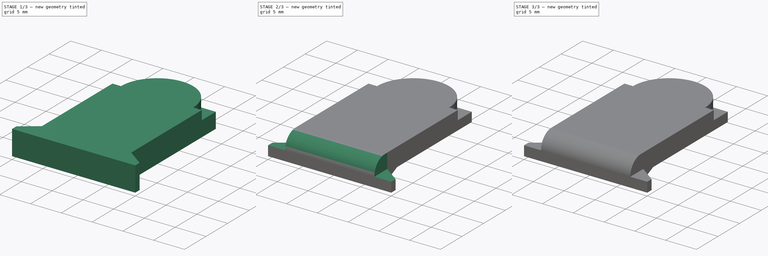
[diagram: build sequence overview — one tinted view per stage of 3, left to right]
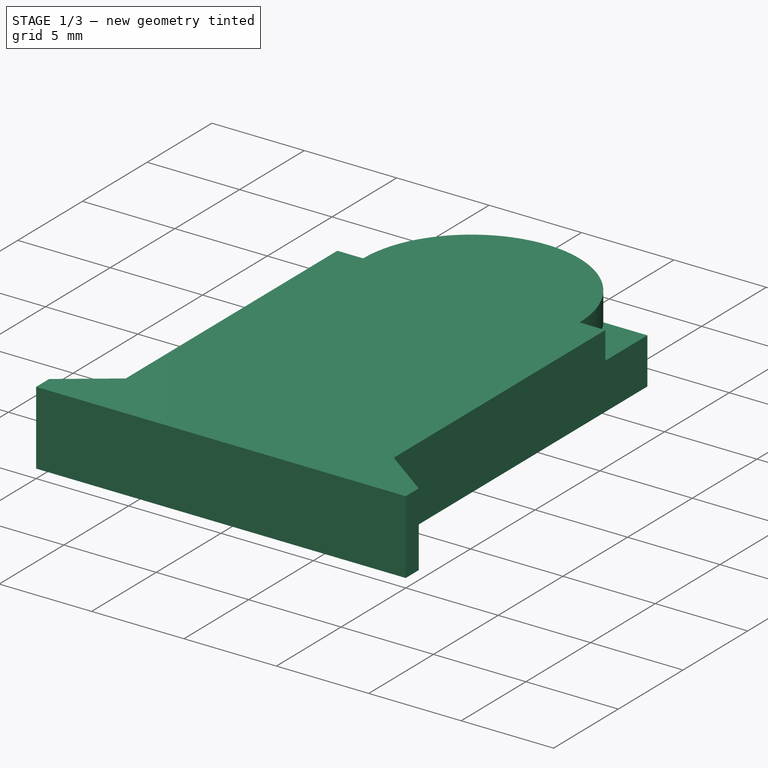
[diagram: stage 1 of 3 — iso view after this stage's code; geometry added in this stage tinted green]
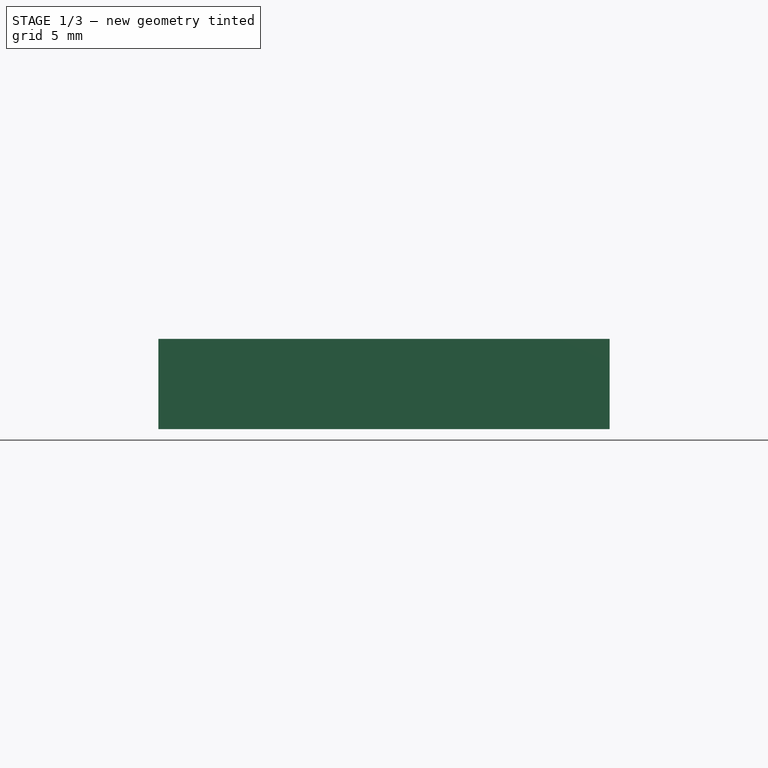
[diagram: stage 1 of 3 — front view after this stage's code; geometry added in this stage tinted green]
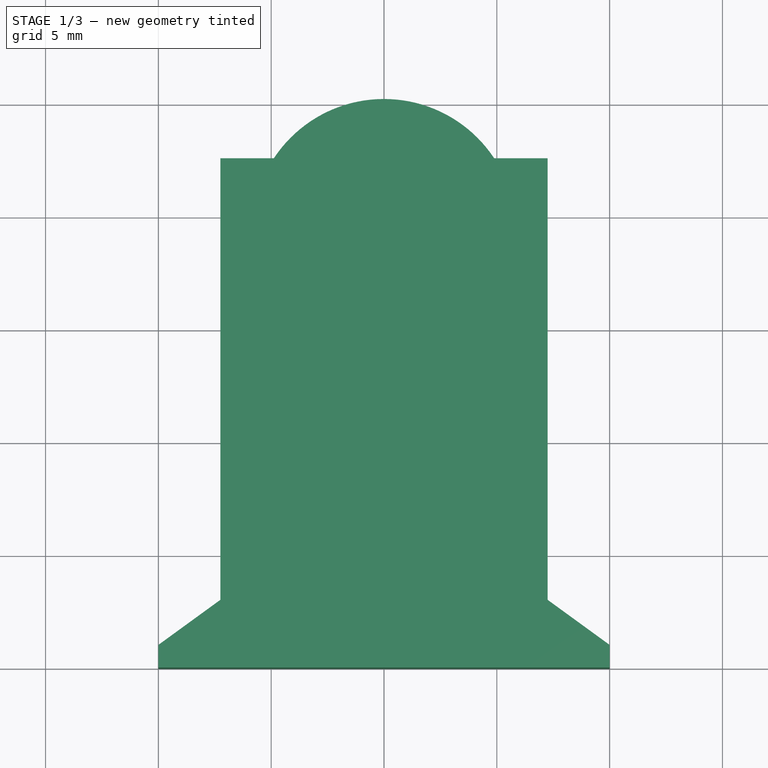
[diagram: stage 1 of 3 — top view after this stage's code; geometry added in this stage tinted green]
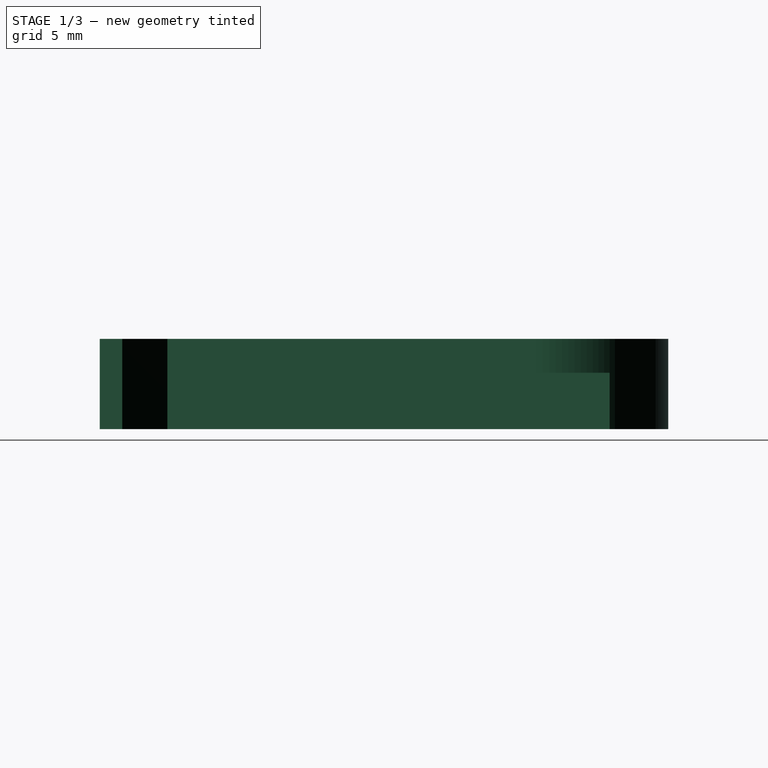
[diagram: stage 1 of 3 — right view after this stage's code; geometry added in this stage tinted green]
FCSTD DOCUMENT  (FreeCAD 0.21R33771 (Git))
Label: Chinon Bellami - battery cover
License: All rights reserved
LicenseURL: http://en.wikipedia.org/wiki/All_rights_reserved
objects: Sketcher::SketchObject×7, PartDesign::Pocket×6, PartDesign::Pad×1, PartDesign::Body×1
note: 22 computed .brp shape members not serialized (recipe doc carries the construction recipe); baked Part::Feature solids carry a one-line shape summary decoded from their .brp

FEATURE [Sketcher::SketchObject] Sketch
  FullyConstrained = true
  MapMode = 5
  Support = -> [XY_Plane]
  sketch-geometry (14):
    g0: LineSegment StartX=-10 StartY=0 StartZ=0 EndX=10 EndY=0 EndZ=0
    g1: LineSegment StartX=10 StartY=0 StartZ=0 EndX=10 EndY=1 EndZ=0
    g2: LineSegment StartX=-10 StartY=0 StartZ=0 EndX=-10 EndY=1 EndZ=0
    g3: LineSegment StartX=-10 StartY=1 StartZ=0 EndX=-7.25 EndY=3 EndZ=0
    g4: LineSegment StartX=10 StartY=1 StartZ=0 EndX=7.25 EndY=3 EndZ=0
    g5: LineSegment StartX=7.25 StartY=3 StartZ=0 EndX=7.25 EndY=22.6 EndZ=0
    g6: LineSegment StartX=-7.25 StartY=3 StartZ=0 EndX=-7.25 EndY=22.6 EndZ=0
    g7: ArcOfCircle CenterX=4e-16 CenterY=19.35 CenterZ=0 NormalX=0 NormalY=0 NormalZ=1 AngleXU=0 Radius=5.85 StartAngle=2e-16 EndAngle=3.14159
    g8: LineSegment StartX=7.25 StartY=19.35 StartZ=0 EndX=5.85 EndY=19.35 EndZ=0
    g9: LineSegment StartX=-7.25 StartY=19.35 StartZ=0 EndX=-5.85 EndY=19.35 EndZ=0
    g10: LineSegment StartX=7.25 StartY=22.6 StartZ=0 EndX=4.86415 EndY=22.6 EndZ=0
    g11: LineSegment StartX=-7.25 StartY=22.6 StartZ=0 EndX=-4.86415 EndY=22.6 EndZ=0
    g12: ArcOfCircle CenterX=4e-16 CenterY=19.35 CenterZ=0 NormalX=0 NormalY=0 NormalZ=1 AngleXU=0 Radius=5.85 StartAngle=0.589031 EndAngle=2.55256
    g13: GeomPoint X=0 Y=25.2 Z=0
  constraints (40):
    c: Horizontal(g0)
    c: Coincident(g1,g0)
    c: Vertical(g1)
    c: Coincident(g2,g0)
    c: Vertical(g2)
    c: Coincident(g4,g1)
    c: Coincident(g5,g4)
    c: Vertical(g5)
    c: Coincident(g6,g3)
    c: Vertical(g6)
    c: PointOnObject(g8,g5)
    c: Horizontal(g8)
    c: PointOnObject(g9,g6)
    c: Horizontal(g9)
    c: Coincident(g7,g9)
    c: Coincident(g7,g8)
    c: Angle(g7) = 3.14159
    c: Coincident(g10,g5)
    c: PointOnObject(g10,g7)
    c: Horizontal(g10)
    c: Coincident(g11,g6)
    c: Horizontal(g11)
    c: Coincident(g12,g11)
    c: Coincident(g12,g10)
    c: Coincident(g12,g7)
    c: Coincident(g3,g2)
    c: DistanceX(g0,g0) = 20
    c: DistanceX(g3,g4) = 14.5
    c: DistanceY(g0,g6) = 22.6
    c: PointOnObject(g13,g12)
    c: PointOnObject(g13,g-2)
    c: DistanceY(g0,g13) = 25.2
    c: Equal(g6,g5)
    c: Symmetric(g3,g4,g-2)
    c: Symmetric(g1,g2,g-2)
    c: DistanceY(g0,g1) = 1
    c: DistanceY(g0,g4) = 3
    c: DistanceX(g9,g7) = 1.4
    c: PointOnObject(g-1,g0)
    c: Symmetric(g7,g7,g-2)
FEATURE [PartDesign::Pad] Pad
  Direction = (1,1,1)
  Length = 4
  Length2 = 100
  Profile = -> Sketch
  Type = 0
FEATURE [Sketcher::SketchObject] Sketch001
  ExternalGeometry = -> [Pad]
  FullyConstrained = true
  MapMode = 5
  Placement = pos=(0,0,4) rot=(0,0,1;0rad)
  Support = -> [Pad]
  sketch-geometry (8):
    g0: ArcOfCircle CenterX=4e-16 CenterY=19.35 CenterZ=0 NormalX=0 NormalY=0 NormalZ=1 AngleXU=0 Radius=5.85 StartAngle=2.55256 EndAngle=3.14159
    g1: LineSegment StartX=-5.85 StartY=19.35 StartZ=0 EndX=-7.25 EndY=19.35 EndZ=0
    g2: LineSegment StartX=-4.86415 StartY=22.6 StartZ=0 EndX=-7.25 EndY=22.6 EndZ=0
    g3: LineSegment StartX=-7.25 StartY=19.35 StartZ=0 EndX=-7.25 EndY=22.6 EndZ=0
    g4: ArcOfCircle CenterX=4e-16 CenterY=19.35 CenterZ=0 NormalX=0 NormalY=0 NormalZ=1 AngleXU=0 Radius=5.85 StartAngle=2e-16 EndAngle=0.589031
    g5: LineSegment StartX=5.85 StartY=19.35 StartZ=0 EndX=7.25 EndY=19.35 EndZ=0
    g6: LineSegment StartX=7.25 StartY=19.35 StartZ=0 EndX=7.25 EndY=22.6 EndZ=0
    g7: LineSegment StartX=7.25 StartY=22.6 StartZ=0 EndX=4.86415 EndY=22.6 EndZ=0
  constraints (20):
    c: Coincident(g0,g-3)
    c: Coincident(g0,g-5)
    c: Coincident(g1,g0)
    c: PointOnObject(g1,g-6)
    c: Coincident(g2,g0)
    c: Coincident(g2,g-6)
    c: Horizontal(g0,g0)
    c: Coincident(g3,g1)
    c: Coincident(g3,g2)
    c: Coincident(g4,g0)
    c: Coincident(g4,g-4)
    c: Horizontal(g4,g0)
    c: Coincident(g5,g4)
    c: PointOnObject(g5,g-7)
    c: Horizontal(g5)
    c: Coincident(g6,g5)
    c: Coincident(g6,g-7)
    c: Coincident(g7,g6)
    c: Coincident(g7,g4)
    c: Horizontal(g1)
FEATURE [PartDesign::Pocket] Pocket
  BaseFeature = -> Pad
  Direction = (0,0,-1)
  Length = 1.5
  Length2 = 100
  Profile = -> Sketch001
  Type = 0
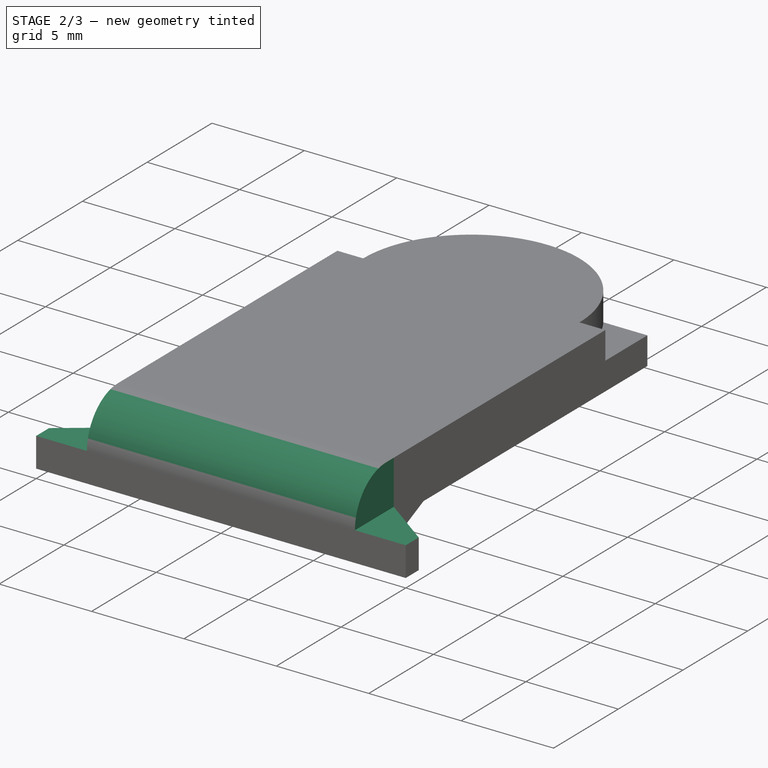
[diagram: stage 2 of 3 — iso view after this stage's code; geometry added in this stage tinted green]
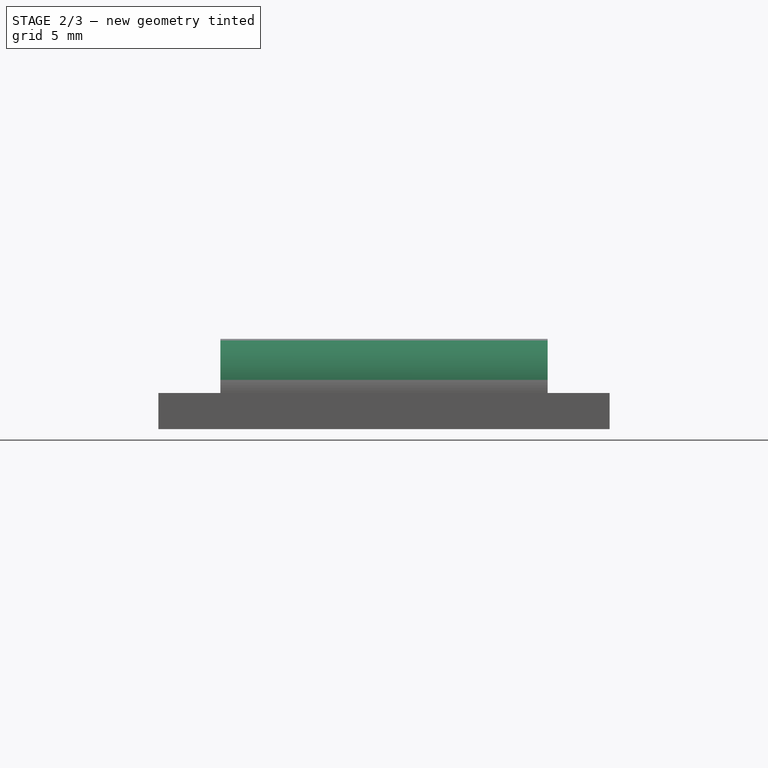
[diagram: stage 2 of 3 — front view after this stage's code; geometry added in this stage tinted green]
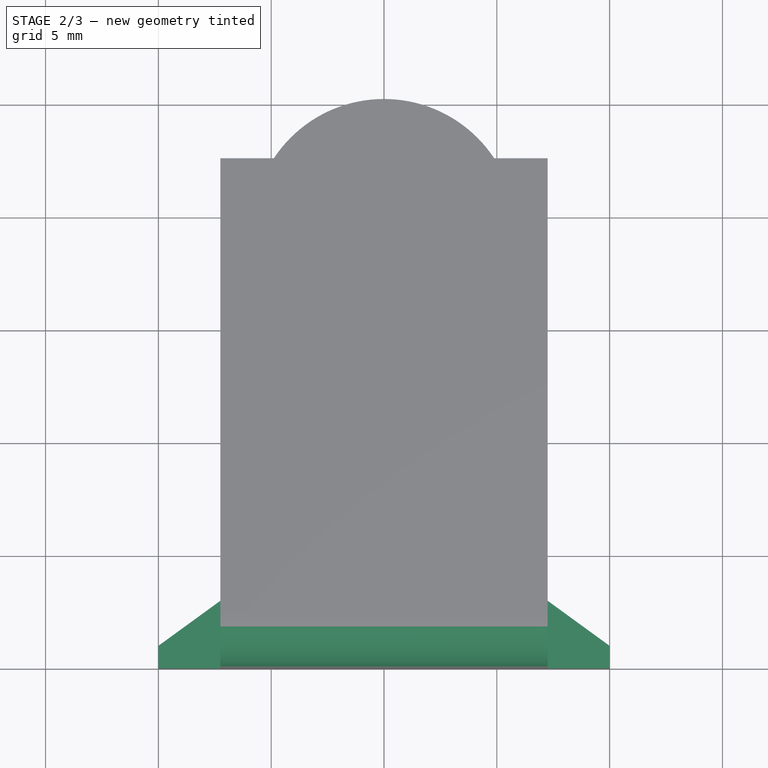
[diagram: stage 2 of 3 — top view after this stage's code; geometry added in this stage tinted green]
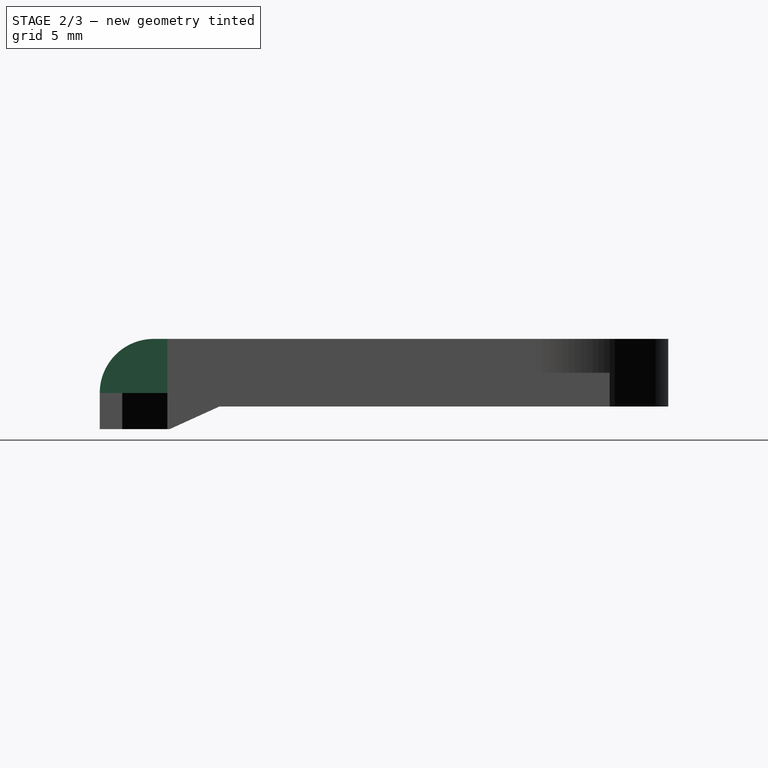
[diagram: stage 2 of 3 — right view after this stage's code; geometry added in this stage tinted green]
FEATURE [Sketcher::SketchObject] Sketch005  label="Sketch002"
  ExternalGeometry = -> [Pad]
  FullyConstrained = true
  MapMode = 5
  Placement = pos=(0,0,4) rot=(0,0,1;0rad)
  Support = -> [Pad]
  sketch-geometry (8):
    g0: LineSegment StartX=-7.25 StartY=3 StartZ=0 EndX=-10 EndY=1 EndZ=0
    g1: LineSegment StartX=-10 StartY=0 StartZ=0 EndX=-10 EndY=1 EndZ=0
    g2: LineSegment StartX=-10 StartY=0 StartZ=0 EndX=-7.25 EndY=0 EndZ=0
    g3: LineSegment StartX=-7.25 StartY=0 StartZ=0 EndX=-7.25 EndY=3 EndZ=0
    g4: LineSegment StartX=7.25 StartY=3 StartZ=0 EndX=10 EndY=1 EndZ=0
    g5: LineSegment StartX=10 StartY=1 StartZ=0 EndX=10 EndY=0 EndZ=0
    g6: LineSegment StartX=10 StartY=0 StartZ=0 EndX=7.25 EndY=0 EndZ=0
    g7: LineSegment StartX=7.25 StartY=0 StartZ=0 EndX=7.25 EndY=3 EndZ=0
  constraints (18):
    c: Coincident(g0,g-5)
    c: Coincident(g0,g-6)
    c: Coincident(g1,g-6)
    c: Coincident(g1,g0)
    c: Coincident(g2,g1)
    c: Horizontal(g2)
    c: Coincident(g3,g2)
    c: Coincident(g3,g0)
    c: Vertical(g3)
    c: Coincident(g4,g-8)
    c: Coincident(g4,g-8)
    c: Coincident(g5,g4)
    c: Coincident(g5,g-7)
    c: Coincident(g6,g5)
    c: Horizontal(g6)
    c: Coincident(g7,g6)
    c: Coincident(g7,g4)
    c: Vertical(g7)
FEATURE [PartDesign::Pocket] Pocket004  label="Pocket001"
  BaseFeature = -> Pocket
  Direction = (0,0,-1)
  Length = 2.4
  Length2 = 100
  Profile = -> Sketch005
  Type = 0
FEATURE [Sketcher::SketchObject] Sketch006
  ExternalGeometry = -> [Pocket004]
  FullyConstrained = true
  MapMode = 5
  Placement = pos=(0,0,0) rot=(0.57735,0.57735,0.57735;2.0944rad)
  Support = -> [YZ_Plane]
  sketch-geometry (3):
    g0: ArcOfCircle CenterX=2.4 CenterY=1.6 CenterZ=0 NormalX=0 NormalY=0 NormalZ=1 AngleXU=0 Radius=2.4 StartAngle=1.5708 EndAngle=3.14159
    g1: LineSegment StartX=0 StartY=1.6 StartZ=0 EndX=0 EndY=4 EndZ=0
    g2: LineSegment StartX=2.4 StartY=4 StartZ=0 EndX=0 EndY=4 EndZ=0
  constraints (8):
    c: Vertical(g0,g0)
    c: Horizontal(g0,g0)
    c: Coincident(g0,g-3)
    c: Coincident(g1,g0)
    c: Coincident(g1,g-4)
    c: PointOnObject(g0,g-4)
    c: Coincident(g2,g0)
    c: Coincident(g2,g1)
FEATURE [PartDesign::Pocket] Pocket005  label="Pocket002"
  BaseFeature = -> Pocket004
  Direction = (-1,2e-16,-3e-16)
  Length = 5
  Length2 = 100
  Midplane = true
  Profile = -> Sketch006
  Type = 1
FEATURE [Sketcher::SketchObject] Sketch007
  ExternalGeometry = -> [Pocket005]
  FullyConstrained = true
  MapMode = 5
  Placement = pos=(0,0,0) rot=(0.57735,0.57735,0.57735;2.0944rad)
  Support = -> [YZ_Plane]
  sketch-geometry (4):
    g0: LineSegment StartX=3.1 StartY=0 StartZ=0 EndX=5.3 EndY=1 EndZ=0
    g1: LineSegment StartX=5.3 StartY=1 StartZ=0 EndX=25.2 EndY=1 EndZ=0
    g2: LineSegment StartX=25.2 StartY=1 StartZ=0 EndX=25.2 EndY=6.9e-15 EndZ=0
    g3: LineSegment StartX=25.2 StartY=6.9e-15 StartZ=0 EndX=3.1 EndY=0 EndZ=0
  constraints (11):
    c: PointOnObject(g0,g-1)
    c: Coincident(g1,g0)
    c: Horizontal(g1)
    c: Coincident(g2,g-4)
    c: Vertical(g2)
    c: Coincident(g1,g2)
    c: Coincident(g3,g2)
    c: Coincident(g3,g0)
    c: DistanceX(g-1,g0) = 3.1
    c: DistanceY(g2,g2) = 1
    c: DistanceX(g-1,g0) = 5.3
FEATURE [PartDesign::Pocket] Pocket006
  BaseFeature = -> Pocket005
  Direction = (-1,2e-16,-3e-16)
  Length = 5
  Length2 = 100
  Midplane = true
  Profile = -> Sketch007
  Type = 1
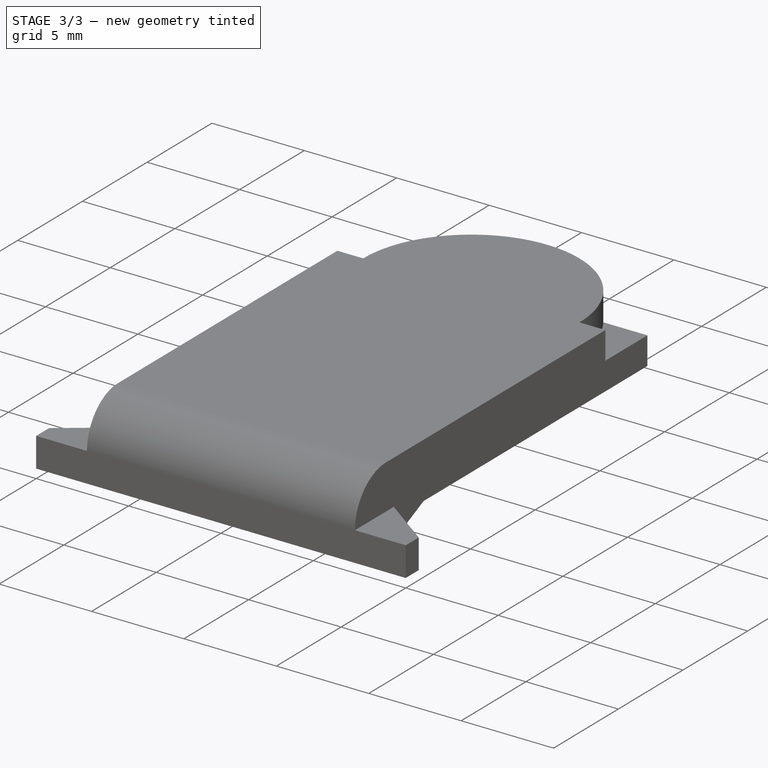
[diagram: stage 3 of 3 — iso view after this stage's code; geometry added in this stage tinted green]
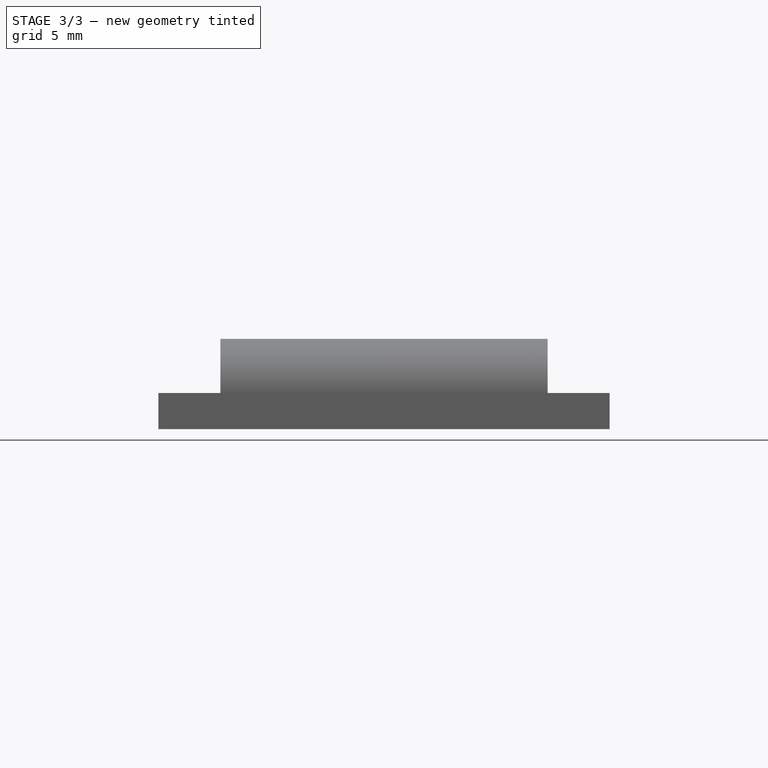
[diagram: stage 3 of 3 — front view after this stage's code; geometry added in this stage tinted green]
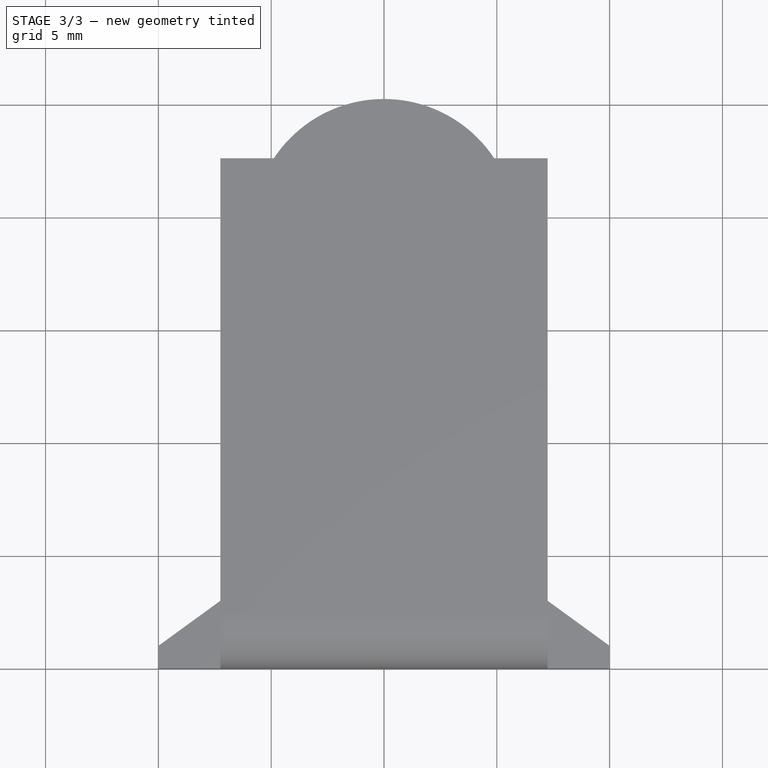
[diagram: stage 3 of 3 — top view after this stage's code; geometry added in this stage tinted green]
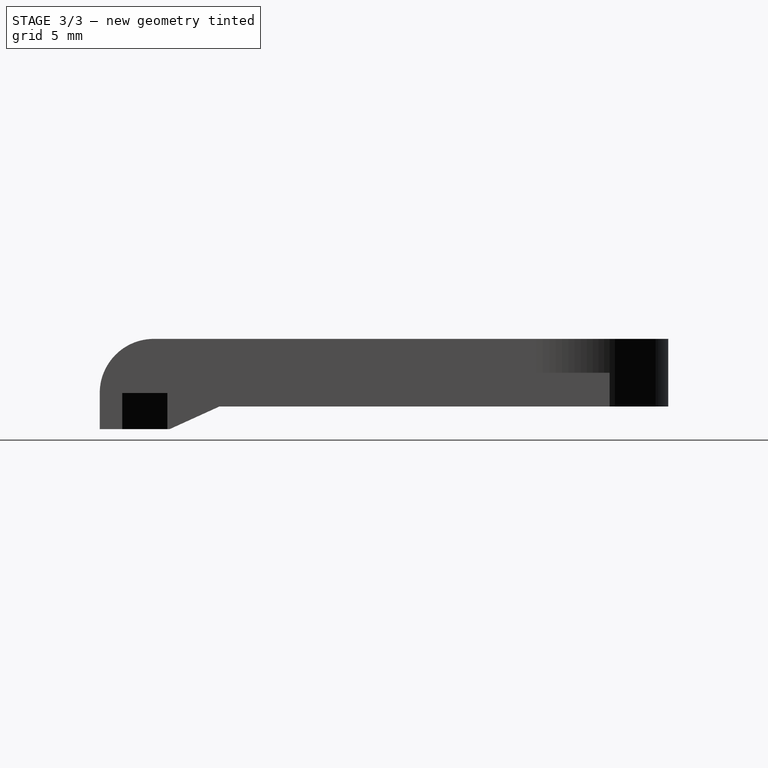
[diagram: stage 3 of 3 — right view after this stage's code; geometry added in this stage tinted green]
FEATURE [Sketcher::SketchObject] Sketch008
  ExternalGeometry = -> [Pocket006]
  FullyConstrained = true
  MapMode = 5
  Support = -> [XY_Plane]
  sketch-geometry (8):
    g0: ArcOfCircle CenterX=3e-16 CenterY=6.35 CenterZ=0 NormalX=0 NormalY=0 NormalZ=1 AngleXU=0 Radius=5.85 StartAngle=3.14159 EndAngle=6.28319
    g1: LineSegment StartX=-5.85 StartY=5.3 StartZ=0 EndX=-5.85 EndY=1.2 EndZ=0
    g2: LineSegment StartX=5.85 StartY=5.3 StartZ=0 EndX=5.85 EndY=1.2 EndZ=0
    g3: ArcOfCircle CenterX=-6.49586e-11 CenterY=6.35 CenterZ=0 NormalX=0 NormalY=0 NormalZ=1 AngleXU=0 Radius=5.85 StartAngle=4.21818 EndAngle=5.2066
    g4: LineSegment StartX=-5.85 StartY=1.2 StartZ=0 EndX=-2.77489 EndY=1.2 EndZ=0
    g5: LineSegment StartX=5.85 StartY=1.2 StartZ=0 EndX=2.77489 EndY=1.2 EndZ=0
    g6: GeomPoint X=0 Y=0.5 Z=0
    g7: LineSegment StartX=-5.85 StartY=5.3 StartZ=0 EndX=5.85 EndY=5.3 EndZ=0
  constraints (26):
    c: Vertical(g0,g-3)
    c: Vertical(g0,g-4)
    c: Angle(g0) = 3.14159
    c: Vertical(g1)
    c: Vertical(g2)
    c: PointOnObject(g0,g2)
    c: PointOnObject(g0,g1)
    c: Equal(g2,g1)
    c: Coincident(g4,g1)
    c: Horizontal(g4)
    c: Coincident(g5,g2)
    c: Horizontal(g5)
    c: Equal(g5,g4)
    c: Horizontal(g1,g2)
    c: Coincident(g3,g5)
    c: Coincident(g3,g4)
    c: PointOnObject(g6,g0)
    c: PointOnObject(g6,g-2)
    c: PointOnObject(g6,g3)
    c: DistanceY(g-1,g6) = 0.5
    c: DistanceY(g-1,g1) = 1.2
    c: Coincident(g7,g1)
    c: Coincident(g7,g2)
    c: PointOnObject(g2,g-5)
    c: PointOnObject(g3,g0)
    c: Horizontal(g0,g0)
FEATURE [PartDesign::Pocket] Pocket007
  BaseFeature = -> Pocket006
  Direction = (0,0,-1)
  Length = 1
  Length2 = 100
  Profile = -> Sketch008
  Reversed = true
  Type = 0
FEATURE [Sketcher::SketchObject] Sketch009
  ExternalGeometry = -> [Pocket007]
  FullyConstrained = true
  MapMode = 5
  Placement = pos=(0,0,0) rot=(0.57735,0.57735,0.57735;2.0944rad)
  Support = -> [YZ_Plane]
  sketch-geometry (11):
    g0: LineSegment StartX=0.5 StartY=0 StartZ=0 EndX=0.5 EndY=1 EndZ=0
    g1: LineSegment StartX=25.2 StartY=1 StartZ=0 EndX=16.85 EndY=1 EndZ=0
    g2: LineSegment StartX=0.5 StartY=1 StartZ=0 EndX=8.85 EndY=1 EndZ=0
    g3: LineSegment StartX=8.85 StartY=1 StartZ=0 EndX=11.85 EndY=2.5 EndZ=0
    g4: LineSegment StartX=11.85 StartY=2.5 StartZ=0 EndX=13.85 EndY=2.5 EndZ=0
    g5: LineSegment StartX=13.85 StartY=2.5 StartZ=0 EndX=16.85 EndY=1 EndZ=0
    g6: LineSegment StartX=8.85 StartY=1 StartZ=0 EndX=9.85 EndY=1 EndZ=0
    g7: LineSegment StartX=9.85 StartY=1 StartZ=0 EndX=12.35 EndY=1.5 EndZ=0
    g8: LineSegment StartX=12.35 StartY=1.5 StartZ=0 EndX=13.35 EndY=1.5 EndZ=0
    g9: LineSegment StartX=13.35 StartY=1.5 StartZ=0 EndX=15.85 EndY=1 EndZ=0
    g10: LineSegment StartX=15.85 StartY=1 StartZ=0 EndX=16.85 EndY=1 EndZ=0
  constraints (31):
    c: Coincident(g0,g-4)
    c: Vertical(g0)
    c: Coincident(g1,g-3)
    c: Horizontal(g1)
    c: Coincident(g2,g0)
    c: Horizontal(g2)
    c: Equal(g2,g1)
    c: Horizontal(g2,g1)
    c: Coincident(g3,g2)
    c: Coincident(g4,g3)
    c: Horizontal(g4)
    c: Coincident(g5,g4)
    c: Coincident(g5,g1)
    c: Coincident(g6,g3)
    c: Horizontal(g6)
    c: Coincident(g7,g6)
    c: Horizontal(g8)
    c: Coincident(g10,g9)
    c: Coincident(g10,g5)
    c: Horizontal(g10)
    c: Equal(g9,g7)
    c: Coincident(g8,g7)
    c: Coincident(g9,g8)
    c: Equal(g5,g3)
    c: Equal(g6,g10)
    c: DistanceX(g3,g6) = 1
    c: DistanceY(g8,g4) = 1
    c: DistanceY(g9,g8) = 0.5
    c: DistanceX(g3,g4) = 2
    c: DistanceX(g7,g8) = 1
    c: DistanceX(g6,g9) = 6
FEATURE [PartDesign::Pocket] Pocket008
  BaseFeature = -> Pocket007
  Direction = (-1,2e-16,-3e-16)
  Length = 4
  Length2 = 100
  Midplane = true
  Profile = -> Sketch009
  Type = 0
FEATURE [PartDesign::Body] Body  label="Battery cover"
  Group = -> [Sketch,Pad,Sketch001,Pocket,Pocket004,Sketch005,Sketch006,Pocket005,Sketch007,Pocket006,Sketch008,Pocket007,Sketch009,Pocket008]
  Origin = -> Origin
  Tip = -> Pocket008
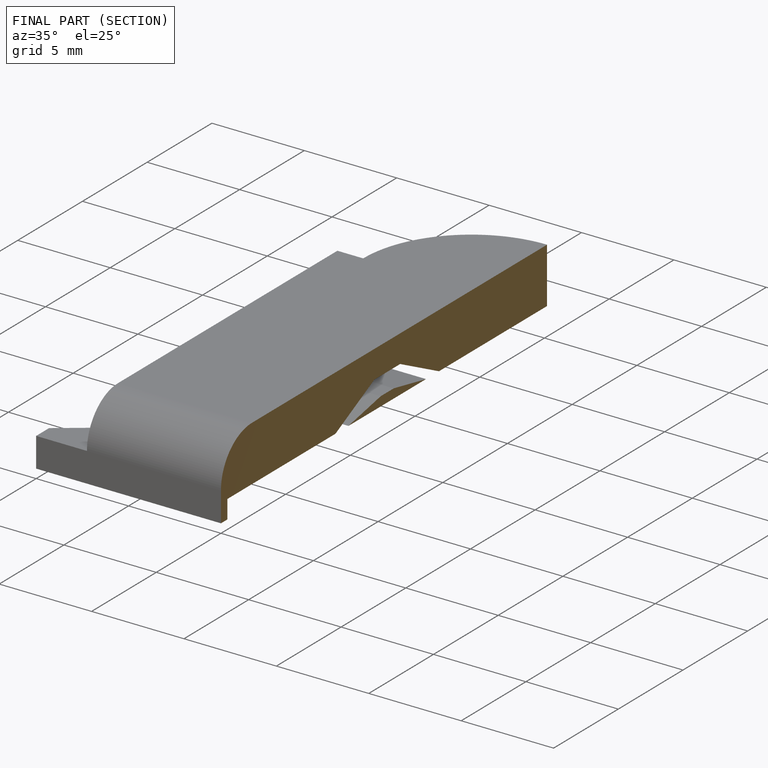
[diagram: finished part — half-section view (interior)]
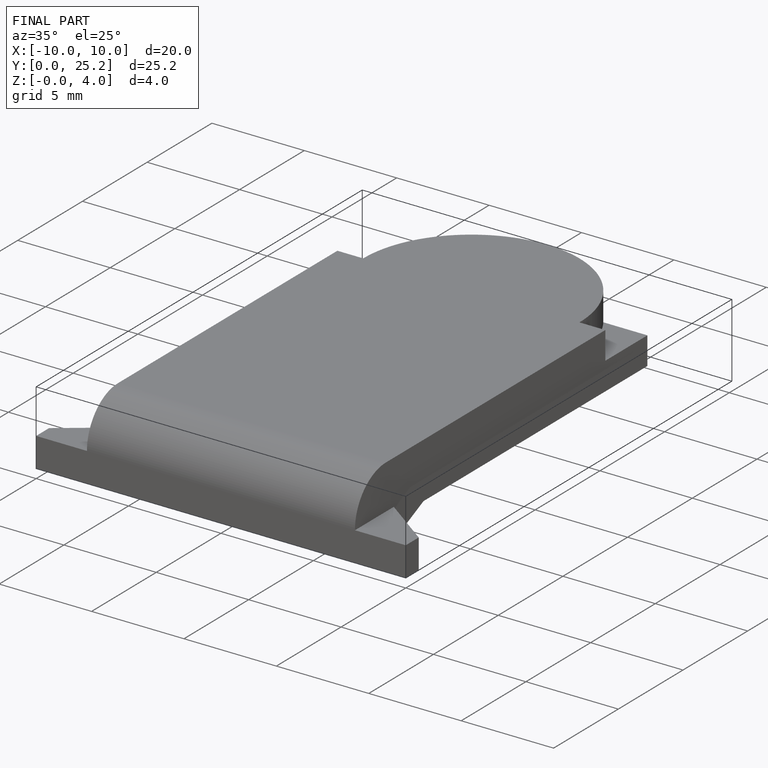
[diagram: finished part — iso view with bounding-box wireframe]
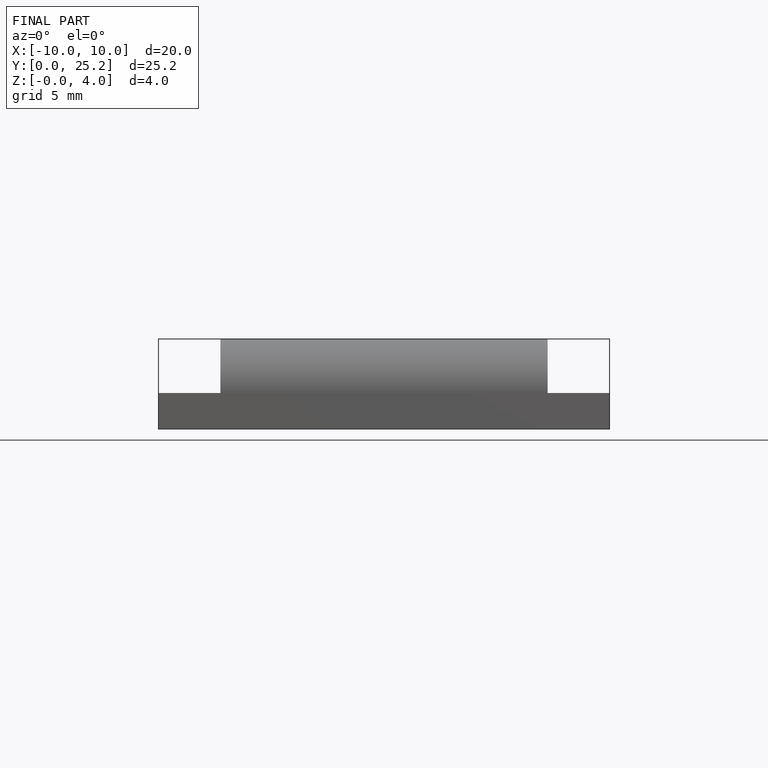
[diagram: finished part — front view with bounding-box wireframe]
